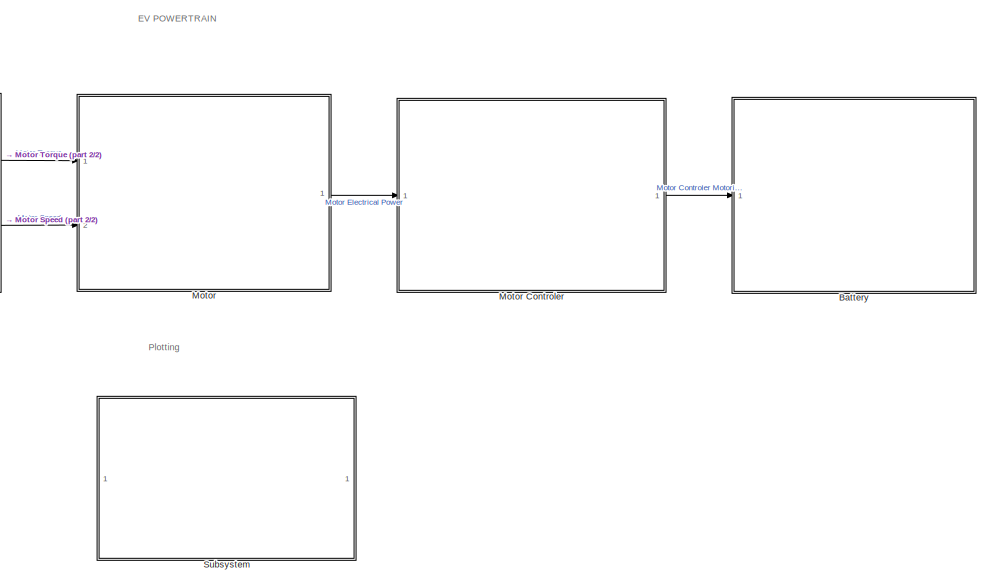
[diagram: root canvas - part 1/2, right side, full height]
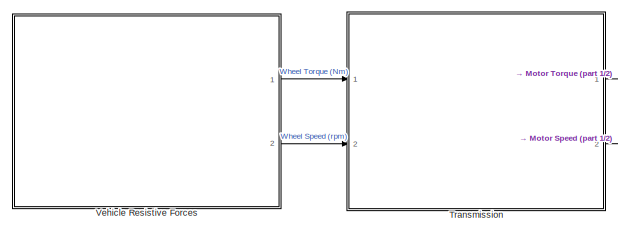
[diagram: root canvas - part 2/2, middle left region]
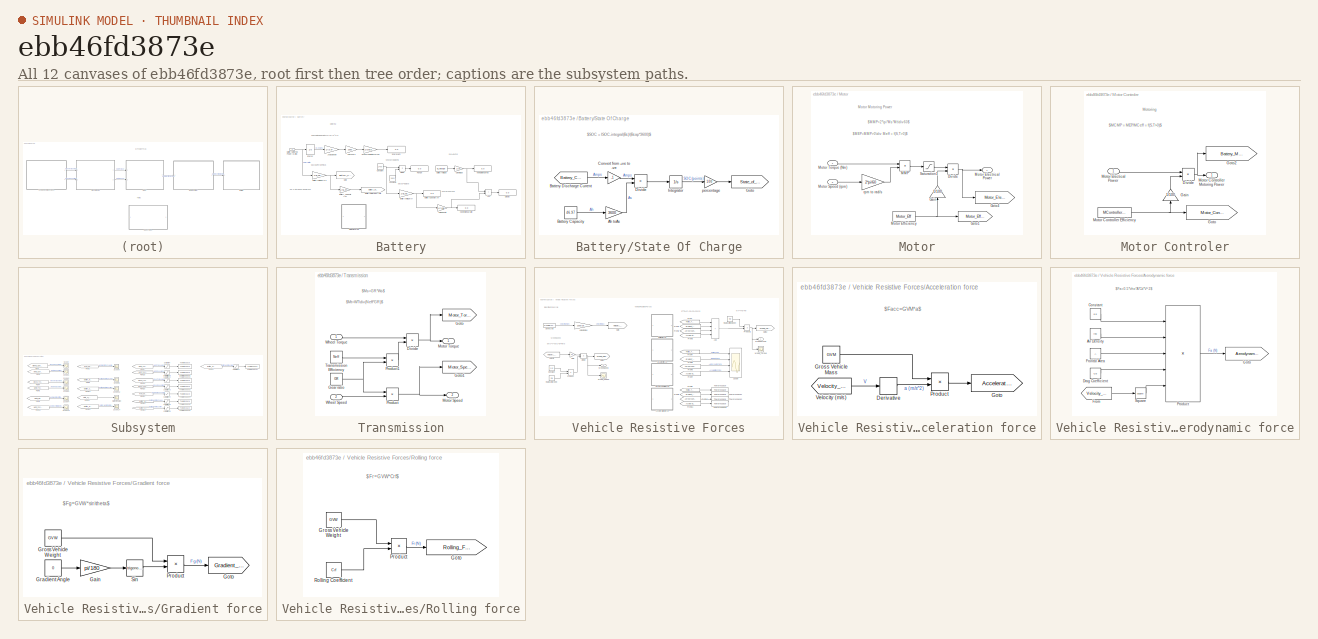
[diagram: thumbnail index - all 12 canvases of the model, root first then tree order]
MODEL slx_ebb46fd3873e
KIND model
CONFIG AbsTol = auto
CONFIG EnableMultiTasking = off
CONFIG FixedStep = 0.5
CONFIG MaxStep = auto
CONFIG MinStep = auto
CONFIG RelTol = 1e-3
CONFIG SampleTimeConstraint = Unconstrained
CONFIG Solver = FixedStepAuto
CONFIG SolverName = FixedStepAuto
CONFIG StartTime = 0.0
CONFIG StopTime = 993
BLOCK [SubSystem] Battery
  Ports = [1]
  RequestExecContextInheritance = off
BLOCK [Sum] Battery/Add
  IconShape = rectangular
  Ports = [2, 1]
BLOCK [Display] Battery/Battery Capacity (Ah)
  Decimation = 1
  Ports = [1]
BLOCK [Goto] Battery/Battery Motoring C-rate
  GotoTag = Battery_Motoring_Crate
  TagVisibility = global
BLOCK [Inport] Battery/Battery Motoring Power (Watts)
BLOCK [Constant] Battery/Battery Voltage
  Value = B_Voltage
BLOCK [Gain] Battery/Battery Voltage (V)
  Gain = 1/B_Voltage
BLOCK [Gain] Battery/Battery Voltage (V)2
  Gain = 1/B_Voltage
BLOCK [Gain] Battery/Battery_Capacity (Ah)
  Gain = 1/46.97
BLOCK [Gain] Battery/Call Capacity
  Gain = 1/Ccap
BLOCK [Gain] Battery/Cell Voltage
  Gain = 1/Cv
BLOCK [Constant] Battery/Constant
  Value = 2400
BLOCK [Constant] Battery/Constant1
  Value = 36.61
BLOCK [Display] Battery/Display
  Decimation = 1
  Ports = [1]
BLOCK [Product] Battery/Divide
  Inputs = */
  Ports = [2, 1]
BLOCK [Gain] Battery/Drive Cycle Distance (km)
  Gain = 1/Distance
BLOCK [Integrator] Battery/Energy
  Ports = [1, 1]
BLOCK [Display] Battery/Energy//Km
  Decimation = 1
  Ports = [1]
BLOCK [Goto] Battery/Goto
  GotoTag = Battery_Current
  TagVisibility = global
BLOCK [Gain] Battery/Joules to Kwh
  Gain = 1/(3.6*10^6)
BLOCK [Gain] Battery/Kwh To Wh
  Gain = 1000
BLOCK [Display] Battery/No of Cells in Series
  Decimation = 1
  Ports = [1]
BLOCK [Display] Battery/No of cells in parallel
  Decimation = 1
  Ports = [1]
BLOCK [Display] Battery/Range
  Decimation = 1
  Ports = [1]
BLOCK [SubSystem] Battery/State Of Charge
  Ports = []
  RequestExecContextInheritance = off
BLOCK [Gain] Battery/State Of Charge/Ah toAs
  Gain = 3600
BLOCK [Constant] Battery/State Of Charge/Battery Capacity
  Value = 46.97
BLOCK [From] Battery/State Of Charge/Battery Discharge Current
  GotoTag = Battery_Current
  TagVisibility = global
BLOCK [Gain] Battery/State Of Charge/Convert from +ve to -ve
  Gain = -1
BLOCK [Product] Battery/State Of Charge/Divide
  Inputs = */
  Ports = [2, 1]
BLOCK [Goto] Battery/State Of Charge/Goto
  GotoTag = State_of_Charge
  TagVisibility = global
BLOCK [Integrator] Battery/State Of Charge/Integrator
  InitialCondition = ISOC
  Ports = [1, 1]
BLOCK [Gain] Battery/State Of Charge/percentage
  Gain = 100
BLOCK [SubSystem] Motor
  Ports = [2, 1]
  RequestExecContextInheritance = off
BLOCK [SubSystem] Motor Controler
  Ports = [1, 1]
  RequestExecContextInheritance = off
BLOCK [Product] Motor Controler/Divide
  Inputs = */
  Ports = [2, 1]
BLOCK [Gain] Motor Controler/Gain
  Gain = 1/100
  NameLocation = right
BLOCK [Goto] Motor Controler/Goto
  GotoTag = Motor_Controller_Efficiency
  TagVisibility = global
BLOCK [Goto] Motor Controler/Goto2
  GotoTag = Battery_Motoring_Power
  TagVisibility = global
BLOCK [Constant] Motor Controler/Motor Controller Efficiency
  Value = MController_Eff
BLOCK [Outport] Motor Controler/Motor Controller Motoring Power
BLOCK [Inport] Motor Controler/Motor Electical Power
BLOCK [Product] Motor/Divide
  Inputs = */
  Ports = [2, 1]
BLOCK [Gain] Motor/Gain
  Gain = 1/100
  NameLocation = right
BLOCK [Goto] Motor/Goto1
  GotoTag = Motor_Efficiency
  TagVisibility = global
BLOCK [Goto] Motor/Goto4
  GotoTag = Motor_Electrical_Power
  TagVisibility = global
BLOCK [Product] Motor/MMP
  Ports = [2, 1]
BLOCK [Constant] Motor/Motor Efficiency
  Value = Motor_Eff
BLOCK [Outport] Motor/Motor Electrical Power
BLOCK [Inport] Motor/Motor Speed (rpm)
  Port = 2
BLOCK [Inport] Motor/Motor Torque (Nm)
BLOCK [Saturate] Motor/Saturation1
  LowerLimit = 0
  UpperLimit = Inf
BLOCK [Gain] Motor/rpm to rad//s
  Gain = 2*pi/60
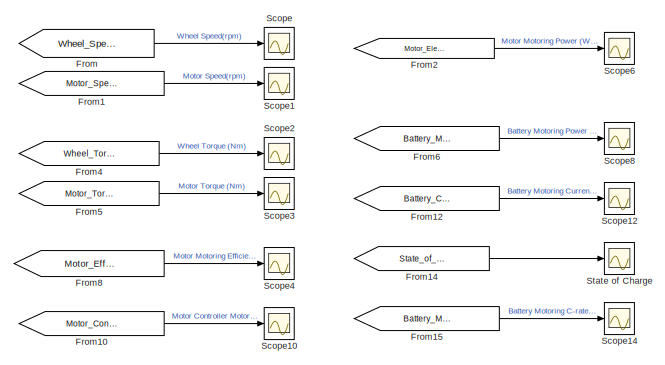
[diagram: Subsystem - part 1/2, left side, full height]
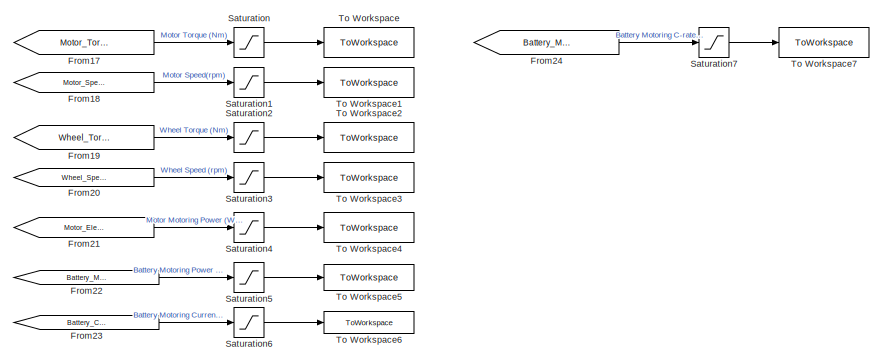
[diagram: Subsystem - part 2/2, right side, full height]
BLOCK [SubSystem] Subsystem
  Ports = []
  RequestExecContextInheritance = off
BLOCK [From] Subsystem/From
  GotoTag = Wheel_Speed
  TagVisibility = global
BLOCK [From] Subsystem/From1
  GotoTag = Motor_Speed
  TagVisibility = global
BLOCK [From] Subsystem/From10
  GotoTag = Motor_Controller_Efficiency
  TagVisibility = global
BLOCK [From] Subsystem/From12
  GotoTag = Battery_Current
  TagVisibility = global
BLOCK [From] Subsystem/From14
  GotoTag = State_of_Charge
  TagVisibility = global
BLOCK [From] Subsystem/From15
  GotoTag = Battery_Motoring_Crate
  TagVisibility = global
BLOCK [From] Subsystem/From17
  GotoTag = Motor_Torque
  TagVisibility = global
BLOCK [From] Subsystem/From18
  GotoTag = Motor_Speed
  TagVisibility = global
BLOCK [From] Subsystem/From19
  GotoTag = Wheel_Torque
  TagVisibility = global
BLOCK [From] Subsystem/From2
  GotoTag = Motor_Electrical_Power
  TagVisibility = global
BLOCK [From] Subsystem/From20
  GotoTag = Wheel_Speed
  TagVisibility = global
BLOCK [From] Subsystem/From21
  GotoTag = Motor_Electrical_Power
  TagVisibility = global
BLOCK [From] Subsystem/From22
  GotoTag = Battery_Motoring_Power
  TagVisibility = global
BLOCK [From] Subsystem/From23
  GotoTag = Battery_Current
  TagVisibility = global
BLOCK [From] Subsystem/From24
  GotoTag = Battery_Motoring_Crate
  TagVisibility = global
BLOCK [From] Subsystem/From4
  GotoTag = Wheel_Torque
  TagVisibility = global
BLOCK [From] Subsystem/From5
  GotoTag = Motor_Torque
  TagVisibility = global
BLOCK [From] Subsystem/From6
  GotoTag = Battery_Motoring_Power
  TagVisibility = global
BLOCK [From] Subsystem/From8
  GotoTag = Motor_Efficiency
  TagVisibility = global
BLOCK [Saturate] Subsystem/Saturation
  LowerLimit = 0
  UpperLimit = inf
BLOCK [Saturate] Subsystem/Saturation1
  LowerLimit = 0
  UpperLimit = inf
BLOCK [Saturate] Subsystem/Saturation2
  LowerLimit = 0
  UpperLimit = inf
BLOCK [Saturate] Subsystem/Saturation3
  LowerLimit = 0
  UpperLimit = inf
BLOCK [Saturate] Subsystem/Saturation4
  LowerLimit = 0
  UpperLimit = inf
BLOCK [Saturate] Subsystem/Saturation5
  LowerLimit = 0
  UpperLimit = inf
BLOCK [Saturate] Subsystem/Saturation6
  LowerLimit = 0
  UpperLimit = inf
BLOCK [Saturate] Subsystem/Saturation7
  LowerLimit = 0
  UpperLimit = inf
BLOCK [Scope] Subsystem/Scope
  Floating = off
  NumInputPorts = 1
  Ports = [1]
  ScopeSpecificationString = Simulink.scopes.TimeScopeBlockCfg('CurrentConfiguration', extmgr.ConfigurationSet(extmgr.Configuration('Core','General UI',true),extmgr.Configuration('Core','Source UI',true),extmgr.Configuration('Sources','WiredSimulink',true,'DataLoggingVariableName','ScopeData1'),extmgr.Configuration('Visuals','Time Domain',true,'SerializedDisplays',{struct('MinYLimReal','-125.53642','MaxYLimReal','1129.82778',...<+1447ch>
BLOCK [Scope] Subsystem/Scope1
  Floating = off
  NumInputPorts = 1
  Ports = [1]
  ScopeSpecificationString = Simulink.scopes.TimeScopeBlockCfg('CurrentConfiguration', extmgr.ConfigurationSet(extmgr.Configuration('Core','General UI',true),extmgr.Configuration('Core','Source UI',true),extmgr.Configuration('Sources','WiredSimulink',true,'DataLoggingVariableName','ScopeData2'),extmgr.Configuration('Visuals','Time Domain',true,'SerializedDisplays',{struct('MinYLimReal','-979.18408','MaxYLimReal','8812.6567','...<+1443ch>
BLOCK [Scope] Subsystem/Scope10
  Floating = off
  NumInputPorts = 1
  Ports = [1]
  ScopeSpecificationString = Simulink.scopes.TimeScopeBlockCfg('CurrentConfiguration', extmgr.ConfigurationSet(extmgr.Configuration('Core','General UI',true),extmgr.Configuration('Core','Source UI',true),extmgr.Configuration('Sources','WiredSimulink',true,'DataLoggingVariableName','ScopeData11'),extmgr.Configuration('Visuals','Time Domain',true),extmgr.Configuration('Tools','Plot Navigation',true),extmgr.Configuration('Tools'...<+41ch>
BLOCK [Scope] Subsystem/Scope12
  Floating = off
  NumInputPorts = 1
  Ports = [1]
  ScopeSpecificationString = Simulink.scopes.TimeScopeBlockCfg('CurrentConfiguration', extmgr.ConfigurationSet(extmgr.Configuration('Core','General UI',true,'FigureColor',[0 0 0]),extmgr.Configuration('Core','Source UI',true),extmgr.Configuration('Sources','WiredSimulink',true,'DataLoggingVariableName','ScopeData13'),extmgr.Configuration('Visuals','Time Domain',true,'SerializedDisplays',{struct('MinYLimReal','-10.08425','MaxY...<+1433ch>
BLOCK [Scope] Subsystem/Scope14
  Floating = off
  NumInputPorts = 1
  Ports = [1]
  ScopeSpecificationString = Simulink.scopes.TimeScopeBlockCfg('CurrentConfiguration', extmgr.ConfigurationSet(extmgr.Configuration('Core','General UI',true),extmgr.Configuration('Core','Source UI',true),extmgr.Configuration('Sources','WiredSimulink',true,'DataLoggingVariableName','ScopeData15'),extmgr.Configuration('Visuals','Time Domain',true,'SerializedDisplays',{struct('MinYLimReal','-0.15328','MaxYLimReal','1.37951','YLa...<+1441ch>
BLOCK [Scope] Subsystem/Scope2
  Floating = off
  NumInputPorts = 1
  Ports = [1]
  ScopeSpecificationString = Simulink.scopes.TimeScopeBlockCfg('CurrentConfiguration', extmgr.ConfigurationSet(extmgr.Configuration('Core','General UI',true),extmgr.Configuration('Core','Source UI',true),extmgr.Configuration('Sources','WiredSimulink',true,'DataLoggingVariableName','ScopeData3'),extmgr.Configuration('Visuals','Time Domain',true,'SerializedDisplays',{struct('MinYLimReal','-107.61615','MaxYLimReal','109.43894','...<+1444ch>
BLOCK [Scope] Subsystem/Scope3
  Floating = off
  NumInputPorts = 1
  Ports = [1]
  ScopeSpecificationString = Simulink.scopes.TimeScopeBlockCfg('CurrentConfiguration', extmgr.ConfigurationSet(extmgr.Configuration('Core','General UI',true),extmgr.Configuration('Core','Source UI',true),extmgr.Configuration('Sources','WiredSimulink',true,'DataLoggingVariableName','ScopeData4'),extmgr.Configuration('Visuals','Time Domain',true,'SerializedDisplays',{struct('MinYLimReal','-16.2317','MaxYLimReal','16.50663','YLa...<+1409ch>
BLOCK [Scope] Subsystem/Scope4
  Floating = off
  NumInputPorts = 1
  Ports = [1]
  ScopeSpecificationString = Simulink.scopes.TimeScopeBlockCfg('CurrentConfiguration', extmgr.ConfigurationSet(extmgr.Configuration('Core','General UI',true),extmgr.Configuration('Core','Source UI',true),extmgr.Configuration('Sources','WiredSimulink',true,'DataLoggingVariableName','ScopeData5'),extmgr.Configuration('Visuals','Time Domain',true),extmgr.Configuration('Tools','Plot Navigation',true),extmgr.Configuration('Tools',...<+40ch>
BLOCK [Scope] Subsystem/Scope6
  Floating = off
  NumInputPorts = 1
  Ports = [1]
  ScopeSpecificationString = Simulink.scopes.TimeScopeBlockCfg('CurrentConfiguration', extmgr.ConfigurationSet(extmgr.Configuration('Core','General UI',true),extmgr.Configuration('Core','Source UI',true),extmgr.Configuration('Sources','WiredSimulink',true,'DataLoggingVariableName','ScopeData7'),extmgr.Configuration('Visuals','Time Domain',true,'SerializedDisplays',{struct('MinYLimReal','-651.86249','MaxYLimReal','5866.76243',...<+1434ch>
BLOCK [Scope] Subsystem/Scope8
  Floating = off
  NumInputPorts = 1
  Ports = [1]
  ScopeSpecificationString = Simulink.scopes.TimeScopeBlockCfg('CurrentConfiguration', extmgr.ConfigurationSet(extmgr.Configuration('Core','General UI',true),extmgr.Configuration('Core','Source UI',true),extmgr.Configuration('Sources','WiredSimulink',true,'DataLoggingVariableName','ScopeData9'),extmgr.Configuration('Visuals','Time Domain',true,'SerializedDisplays',{struct('MinYLimReal','-3678.73387','MaxYLimReal','33108.60479...<+1469ch>
BLOCK [Scope] Subsystem/State of Charge
  Floating = off
  NumInputPorts = 1
  Ports = [1]
  ScopeSpecificationString = Simulink.scopes.TimeScopeBlockCfg('CurrentConfiguration', extmgr.ConfigurationSet(extmgr.Configuration('Core','General UI',true),extmgr.Configuration('Core','Source UI',true),extmgr.Configuration('Sources','WiredSimulink',true,'DataLoggingVariableName','ScopeData1'),extmgr.Configuration('Visuals','Time Domain',true,'SerializedDisplays',{struct('MinYLimReal','87.04336','MaxYLimReal','101.43963','YL...<+1433ch>
BLOCK [ToWorkspace] Subsystem/To Workspace
  FixptAsFi = on
  MaxDataPoints = inf
  Ports = [1]
  SampleTime = -1
  SaveFormat = Timeseries
  VariableName = Motor_Torque
BLOCK [ToWorkspace] Subsystem/To Workspace1
  FixptAsFi = on
  MaxDataPoints = inf
  Ports = [1]
  SampleTime = -1
  SaveFormat = Timeseries
  VariableName = Motor_Speed
BLOCK [ToWorkspace] Subsystem/To Workspace2
  FixptAsFi = on
  MaxDataPoints = inf
  Ports = [1]
  SampleTime = -1
  SaveFormat = Timeseries
  VariableName = Wheel_Torque
BLOCK [ToWorkspace] Subsystem/To Workspace3
  FixptAsFi = on
  MaxDataPoints = inf
  Ports = [1]
  SampleTime = -1
  SaveFormat = Timeseries
  VariableName = Wheel_Speed
BLOCK [ToWorkspace] Subsystem/To Workspace4
  FixptAsFi = on
  MaxDataPoints = inf
  Ports = [1]
  SampleTime = -1
  SaveFormat = Timeseries
  VariableName = Motor_Power
BLOCK [ToWorkspace] Subsystem/To Workspace5
  FixptAsFi = on
  MaxDataPoints = inf
  Ports = [1]
  SampleTime = -1
  SaveFormat = Timeseries
  VariableName = Battery_Power
BLOCK [ToWorkspace] Subsystem/To Workspace6
  FixptAsFi = on
  MaxDataPoints = inf
  Ports = [1]
  SampleTime = -1
  SaveFormat = Timeseries
  VariableName = Battery_Current
BLOCK [ToWorkspace] Subsystem/To Workspace7
  FixptAsFi = on
  MaxDataPoints = inf
  Ports = [1]
  SampleTime = -1
  SaveFormat = Timeseries
  VariableName = Battery_CRate
BLOCK [SubSystem] Transmission
  Ports = [2, 2]
  RequestExecContextInheritance = off
BLOCK [Product] Transmission/Divide
  Inputs = */
  Ports = [2, 1]
BLOCK [Constant] Transmission/Gear ratio
  Value = GR
BLOCK [Goto] Transmission/Goto
  GotoTag = Motor_Torque
  TagVisibility = global
BLOCK [Goto] Transmission/Goto1
  GotoTag = Motor_Speed
  TagVisibility = global
BLOCK [Outport] Transmission/Motor Speed
  Port = 2
BLOCK [Outport] Transmission/Motor Torque
BLOCK [Product] Transmission/Product
  Ports = [2, 1]
BLOCK [Product] Transmission/Product1
  Ports = [2, 1]
BLOCK [Constant] Transmission/Transmission Efficiency
  Value = Neff
BLOCK [Inport] Transmission/Wheel Speed
  Port = 2
BLOCK [Inport] Transmission/Wheel Torque
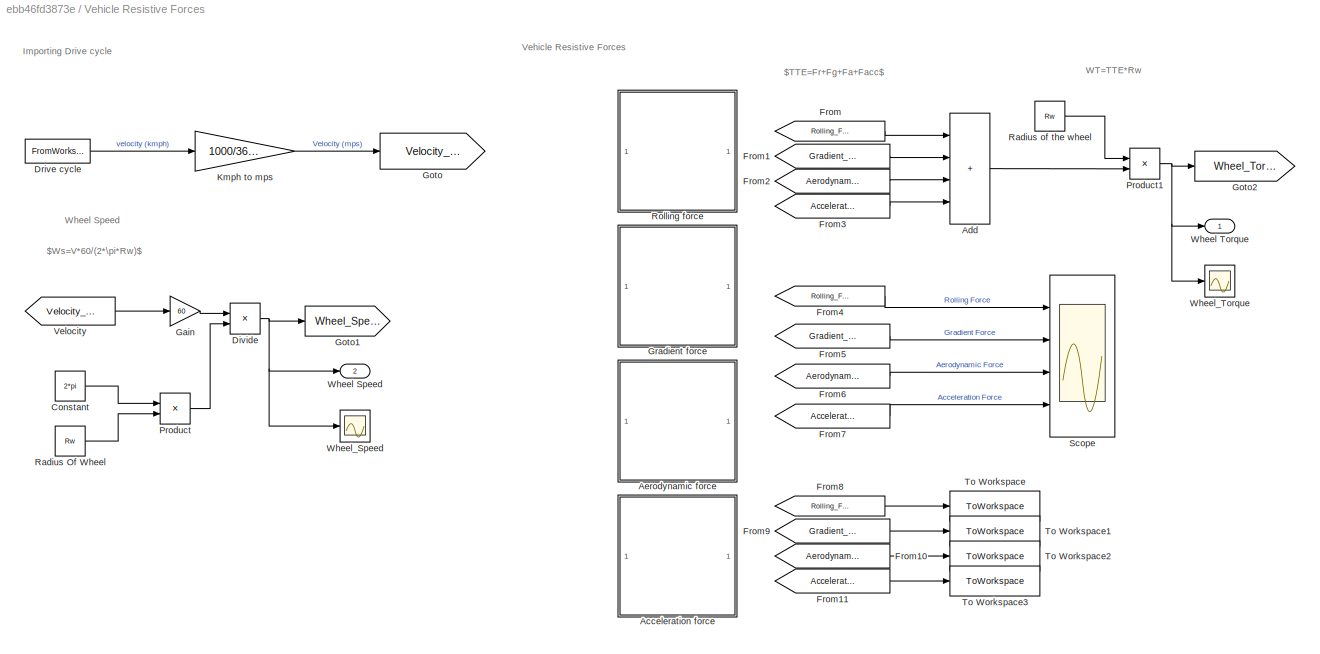
BLOCK [SubSystem] Vehicle Resistive Forces
  Ports = [0, 2]
  RequestExecContextInheritance = off
BLOCK [SubSystem] Vehicle Resistive Forces/Acceleration force
  Ports = []
  RequestExecContextInheritance = off
BLOCK [Derivative] Vehicle Resistive Forces/Acceleration force/Derivative
BLOCK [Goto] Vehicle Resistive Forces/Acceleration force/Goto
  GotoTag = Acceleration_Force
  TagVisibility = global
BLOCK [Constant] Vehicle Resistive Forces/Acceleration force/Gross Vehicle Mass
  Value = GVM
BLOCK [Product] Vehicle Resistive Forces/Acceleration force/Product
  Ports = [2, 1]
BLOCK [From] Vehicle Resistive Forces/Acceleration force/Velocity (m//s)
  GotoTag = Velocity_mps
  TagVisibility = global
BLOCK [Sum] Vehicle Resistive Forces/Add
  IconShape = rectangular
  Inputs = ++++
  Ports = [4, 1]
BLOCK [SubSystem] Vehicle Resistive Forces/Aerodynamic force
  Ports = []
  RequestExecContextInheritance = off
BLOCK [Constant] Vehicle Resistive Forces/Aerodynamic force/Air Density
  Value = rho
BLOCK [Constant] Vehicle Resistive Forces/Aerodynamic force/Constant
  Value = 0.5
BLOCK [Constant] Vehicle Resistive Forces/Aerodynamic force/Drag Coefficient
  Value = Cd
BLOCK [From] Vehicle Resistive Forces/Aerodynamic force/From
  GotoTag = Velocity_mps
  TagVisibility = global
BLOCK [Constant] Vehicle Resistive Forces/Aerodynamic force/Frontal Area
  Value = A
BLOCK [Goto] Vehicle Resistive Forces/Aerodynamic force/Goto
  GotoTag = Aerodynamic_Force
  TagVisibility = global
BLOCK [Product] Vehicle Resistive Forces/Aerodynamic force/Product
  Inputs = 5
  Ports = [5, 1]
BLOCK [Math] Vehicle Resistive Forces/Aerodynamic force/Square
  Operator = square
  Ports = [1, 1]
BLOCK [Constant] Vehicle Resistive Forces/Constant
  Value = 2*pi
BLOCK [Product] Vehicle Resistive Forces/Divide
  Inputs = */
  Ports = [2, 1]
BLOCK [FromWorkspace] Vehicle Resistive Forces/Drive cycle
  VariableName = Artimus_Urban
BLOCK [From] Vehicle Resistive Forces/From
  GotoTag = Rolling_Force
  TagVisibility = global
BLOCK [From] Vehicle Resistive Forces/From1
  GotoTag = Gradient_Force
  TagVisibility = global
BLOCK [From] Vehicle Resistive Forces/From10
  GotoTag = Aerodynamic_Force
  TagVisibility = global
BLOCK [From] Vehicle Resistive Forces/From11
  GotoTag = Acceleration_Force
  TagVisibility = global
BLOCK [From] Vehicle Resistive Forces/From2
  GotoTag = Aerodynamic_Force
  TagVisibility = global
BLOCK [From] Vehicle Resistive Forces/From3
  GotoTag = Acceleration_Force
  TagVisibility = global
BLOCK [From] Vehicle Resistive Forces/From4
  GotoTag = Rolling_Force
  TagVisibility = global
BLOCK [From] Vehicle Resistive Forces/From5
  GotoTag = Gradient_Force
  TagVisibility = global
BLOCK [From] Vehicle Resistive Forces/From6
  GotoTag = Aerodynamic_Force
  TagVisibility = global
BLOCK [From] Vehicle Resistive Forces/From7
  GotoTag = Acceleration_Force
  TagVisibility = global
BLOCK [From] Vehicle Resistive Forces/From8
  GotoTag = Rolling_Force
  TagVisibility = global
BLOCK [From] Vehicle Resistive Forces/From9
  GotoTag = Gradient_Force
  TagVisibility = global
BLOCK [Gain] Vehicle Resistive Forces/Gain
  Gain = 60
BLOCK [Goto] Vehicle Resistive Forces/Goto
  GotoTag = Velocity_mps
  TagVisibility = global
BLOCK [Goto] Vehicle Resistive Forces/Goto1
  GotoTag = Wheel_Speed
  TagVisibility = global
BLOCK [Goto] Vehicle Resistive Forces/Goto2
  GotoTag = Wheel_Torque
  TagVisibility = global
BLOCK [SubSystem] Vehicle Resistive Forces/Gradient force
  Ports = []
  RequestExecContextInheritance = off
BLOCK [Gain] Vehicle Resistive Forces/Gradient force/Gain
  Gain = pi/180
BLOCK [Goto] Vehicle Resistive Forces/Gradient force/Goto
  GotoTag = Gradient_Force
  TagVisibility = global
BLOCK [Constant] Vehicle Resistive Forces/Gradient force/Gradient Angle
  Value = 0
BLOCK [Constant] Vehicle Resistive Forces/Gradient force/Gross Vehicle Weight
  Value = GVW
BLOCK [Product] Vehicle Resistive Forces/Gradient force/Product
  Ports = [2, 1]
BLOCK [Trigonometry] Vehicle Resistive Forces/Gradient force/Sin
  Ports = [1, 1]
BLOCK [Gain] Vehicle Resistive Forces/Kmph to mps
  Gain = 1000/3600
BLOCK [Product] Vehicle Resistive Forces/Product
  Ports = [2, 1]
BLOCK [Product] Vehicle Resistive Forces/Product1
  Ports = [2, 1]
BLOCK [Constant] Vehicle Resistive Forces/Radius Of Wheel
  Value = Rw
BLOCK [Constant] Vehicle Resistive Forces/Radius of the wheel
  Value = Rw
BLOCK [SubSystem] Vehicle Resistive Forces/Rolling force
  Ports = []
  RequestExecContextInheritance = off
BLOCK [Goto] Vehicle Resistive Forces/Rolling force/Goto
  GotoTag = Rolling_Force
  TagVisibility = global
BLOCK [Constant] Vehicle Resistive Forces/Rolling force/Gross Vehicle Weight
  Value = GVW
BLOCK [Product] Vehicle Resistive Forces/Rolling force/Product
  Ports = [2, 1]
BLOCK [Constant] Vehicle Resistive Forces/Rolling force/Rolling Coefficient
  Value = Crf
BLOCK [Scope] Vehicle Resistive Forces/Scope
  Floating = off
  NumInputPorts = 4
  Ports = [4]
  ScopeSpecificationString = Simulink.scopes.TimeScopeBlockCfg('CurrentConfiguration', extmgr.ConfigurationSet(extmgr.Configuration('Core','General UI',true),extmgr.Configuration('Core','Source UI',true),extmgr.Configuration('Sources','WiredSimulink',true,'DataLoggingVariableName','ScopeData1'),extmgr.Configuration('Visuals','Time Domain',true,'SerializedDisplays',{struct('MinYLimReal','18.10565','MaxYLimReal','38.10565','YLa...<+3539ch>
BLOCK [ToWorkspace] Vehicle Resistive Forces/To Workspace
  FixptAsFi = on
  MaxDataPoints = inf
  Ports = [1]
  SampleTime = -1
  SaveFormat = Timeseries
  VariableName = Rolling_Force
BLOCK [ToWorkspace] Vehicle Resistive Forces/To Workspace1
  FixptAsFi = on
  MaxDataPoints = inf
  Ports = [1]
  SampleTime = -1
  SaveFormat = Timeseries
  VariableName = Gradient_Force
BLOCK [ToWorkspace] Vehicle Resistive Forces/To Workspace2
  FixptAsFi = on
  MaxDataPoints = inf
  Ports = [1]
  SampleTime = -1
  SaveFormat = Timeseries
  VariableName = Aerodynamic_Force
BLOCK [ToWorkspace] Vehicle Resistive Forces/To Workspace3
  FixptAsFi = on
  MaxDataPoints = inf
  Ports = [1]
  SampleTime = -1
  SaveFormat = Timeseries
  VariableName = Acceleration_Force
BLOCK [From] Vehicle Resistive Forces/Velocity
  GotoTag = Velocity_mps
  TagVisibility = global
BLOCK [Outport] Vehicle Resistive Forces/Wheel Speed
  Port = 2
BLOCK [Outport] Vehicle Resistive Forces/Wheel Torque
BLOCK [Scope] Vehicle Resistive Forces/Wheel_Speed
  Floating = off
  NumInputPorts = 1
  Ports = [1]
  ScopeSpecificationString = Simulink.scopes.TimeScopeBlockCfg('CurrentConfiguration', extmgr.ConfigurationSet(extmgr.Configuration('Core','General UI',true),extmgr.Configuration('Core','Source UI',true),extmgr.Configuration('Sources','WiredSimulink',true,'DataLoggingVariableName','ScopeData1'),extmgr.Configuration('Visuals','Time Domain',true),extmgr.Configuration('Tools','Plot Navigation',true),extmgr.Configuration('Tools',...<+40ch>
BLOCK [Scope] Vehicle Resistive Forces/Wheel_Torque
  Floating = off
  NumInputPorts = 1
  Ports = [1]
  ScopeSpecificationString = Simulink.scopes.TimeScopeBlockCfg('CurrentConfiguration', extmgr.ConfigurationSet(extmgr.Configuration('Core','General UI',true),extmgr.Configuration('Core','Source UI',true),extmgr.Configuration('Sources','WiredSimulink',true),extmgr.Configuration('Visuals','Time Domain',true,'SerializedDisplays',{struct('MinYLimReal','-107.61615','MaxYLimReal','109.43894','YLabelReal','','MinYLimMag',' 0.00000',...<+1342ch>
ANNOTATION (root): EV POWERTRAIN
ANNOTATION (root): Plotting
ANNOTATION Battery: Motoring
ANNOTATION Battery: $B-Crate = BMC or BRC/ Bcap$
ANNOTATION Battery: $BC = BMP or BRP/BV$
ANNOTATION Battery: $Bcap = BE/BV$
ANNOTATION Battery: $Range = BE/E/Km$
ANNOTATION Battery: $E/Km = \int BMP\div Distance*3.6*10^6)$
ANNOTATION Battery: $Np = Bcap/Ccap$
ANNOTATION Battery: $Ns = Bv/Cv$
ANNOTATION Battery/State Of Charge: $SOC = ISOC-integral(Bc)/(Bcap*3600)$
ANNOTATION Motor: Motor Motoring Power
ANNOTATION Motor: $MEP=MMP>0\div Meff = f(S,T>0)$
ANNOTATION Motor: $MMP=2*\pi*Ms*Mt\div60$
ANNOTATION Motor Controler: Motoring
ANNOTATION Motor Controler: $MCMP = MEP/MCeff = f(S,T>0)$
ANNOTATION Transmission: $Ms=GR*Ws$
ANNOTATION Transmission: $Mt=WT\div(Neff*GR)$
ANNOTATION Vehicle Resistive Forces: WT=TTE*Rw
ANNOTATION Vehicle Resistive Forces: Importing Drive cycle
ANNOTATION Vehicle Resistive Forces: Vehicle Resistive Forces
ANNOTATION Vehicle Resistive Forces: Wheel Speed
ANNOTATION Vehicle Resistive Forces: $Ws=V*60/(2*\pi*Rw)$
ANNOTATION Vehicle Resistive Forces: $TTE=Fr+Fg+Fa+Facc$
ANNOTATION Vehicle Resistive Forces/Acceleration force: $Facc=GVM*a$
ANNOTATION Vehicle Resistive Forces/Aerodynamic force: $Fa=0.5*\rho*A*Cd*V^2$
ANNOTATION Vehicle Resistive Forces/Gradient force: $Fg=GVW*sin\theta$
ANNOTATION Vehicle Resistive Forces/Rolling force: $Fr=GVW*Crf$
LINE Battery/Add:1 -> Battery/Display:1
NET Battery/Battery Motoring Power (Watts):1 -> Battery/Battery Voltage (V)2:1, Battery/Energy:1
NET Battery/Battery Voltage (V)2:1 -> Battery/Battery_Capacity (Ah):1, Battery/Goto:1
NET Battery/Battery Voltage (V):1 -> Battery/Battery Capacity (Ah):1, Battery/Call Capacity:1
LINE Battery/Battery Voltage:1 -> Battery/Cell Voltage:1
LINE Battery/Battery_Capacity (Ah):1 -> Battery/Battery Motoring C-rate:1
NET Battery/Call Capacity:1 -> Battery/Add:2, Battery/No of cells in parallel:1
NET Battery/Cell Voltage:1 -> Battery/Add:1, Battery/No of Cells in Series:1
LINE Battery/Constant1:1 -> Battery/Divide:2
NET Battery/Constant:1 -> Battery/Battery Voltage (V):1, Battery/Divide:1
LINE Battery/Divide:1 -> Battery/Range:1
LINE Battery/Drive Cycle Distance (km):1 -> Battery/Energy//Km:1
LINE Battery/Energy:1 -> Battery/Joules to Kwh:1
LINE Battery/Joules to Kwh:1 -> Battery/Kwh To Wh:1
LINE Battery/Kwh To Wh:1 -> Battery/Drive Cycle Distance (km):1
LINE Battery/State Of Charge/Ah toAs:1 -> Battery/State Of Charge/Divide:2
LINE Battery/State Of Charge/Battery Capacity:1 -> Battery/State Of Charge/Ah toAs:1
LINE Battery/State Of Charge/Battery Discharge Current:1 -> Battery/State Of Charge/Convert from +ve to -ve:1
LINE Battery/State Of Charge/Convert from +ve to -ve:1 -> Battery/State Of Charge/Divide:1
LINE Battery/State Of Charge/Divide:1 -> Battery/State Of Charge/Integrator:1
LINE Battery/State Of Charge/Integrator:1 -> Battery/State Of Charge/percentage:1
LINE Battery/State Of Charge/percentage:1 -> Battery/State Of Charge/Goto:1
NET Motor Controler/Divide:1 -> Motor Controler/Goto2:1, Motor Controler/Motor Controller Motoring Power:1
LINE Motor Controler/Gain:1 -> Motor Controler/Divide:2
NET Motor Controler/Motor Controller Efficiency:1 -> Motor Controler/Gain:1, Motor Controler/Goto:1
LINE Motor Controler/Motor Electical Power:1 -> Motor Controler/Divide:1
LINE Motor Controler:1 -> Battery:1
NET Motor/Divide:1 -> Motor/Goto4:1, Motor/Motor Electrical Power:1
LINE Motor/Gain:1 -> Motor/Divide:2
LINE Motor/MMP:1 -> Motor/Saturation1:1
NET Motor/Motor Efficiency:1 -> Motor/Gain:1, Motor/Goto1:1
LINE Motor/Motor Speed (rpm):1 -> Motor/rpm to rad//s:1
LINE Motor/Motor Torque (Nm):1 -> Motor/MMP:1
LINE Motor/Saturation1:1 -> Motor/Divide:1
LINE Motor/rpm to rad//s:1 -> Motor/MMP:2
LINE Motor:1 -> Motor Controler:1
LINE Subsystem/From10:1 -> Subsystem/Scope10:1
LINE Subsystem/From12:1 -> Subsystem/Scope12:1
LINE Subsystem/From14:1 -> Subsystem/State of Charge:1
LINE Subsystem/From15:1 -> Subsystem/Scope14:1
LINE Subsystem/From17:1 -> Subsystem/Saturation:1
LINE Subsystem/From18:1 -> Subsystem/Saturation1:1
LINE Subsystem/From19:1 -> Subsystem/Saturation2:1
LINE Subsystem/From1:1 -> Subsystem/Scope1:1
LINE Subsystem/From20:1 -> Subsystem/Saturation3:1
LINE Subsystem/From21:1 -> Subsystem/Saturation4:1
LINE Subsystem/From22:1 -> Subsystem/Saturation5:1
LINE Subsystem/From23:1 -> Subsystem/Saturation6:1
LINE Subsystem/From24:1 -> Subsystem/Saturation7:1
LINE Subsystem/From2:1 -> Subsystem/Scope6:1
LINE Subsystem/From4:1 -> Subsystem/Scope2:1
LINE Subsystem/From5:1 -> Subsystem/Scope3:1
LINE Subsystem/From6:1 -> Subsystem/Scope8:1
LINE Subsystem/From8:1 -> Subsystem/Scope4:1
LINE Subsystem/From:1 -> Subsystem/Scope:1
LINE Subsystem/Saturation1:1 -> Subsystem/To Workspace1:1
LINE Subsystem/Saturation2:1 -> Subsystem/To Workspace2:1
LINE Subsystem/Saturation3:1 -> Subsystem/To Workspace3:1
LINE Subsystem/Saturation4:1 -> Subsystem/To Workspace4:1
LINE Subsystem/Saturation5:1 -> Subsystem/To Workspace5:1
LINE Subsystem/Saturation6:1 -> Subsystem/To Workspace6:1
LINE Subsystem/Saturation7:1 -> Subsystem/To Workspace7:1
LINE Subsystem/Saturation:1 -> Subsystem/To Workspace:1
NET Transmission/Divide:1 -> Transmission/Goto:1, Transmission/Motor Torque:1
NET Transmission/Gear ratio:1 -> Transmission/Product1:2, Transmission/Product:1
LINE Transmission/Product1:1 -> Transmission/Divide:2
NET Transmission/Product:1 -> Transmission/Goto1:1, Transmission/Motor Speed:1
LINE Transmission/Transmission Efficiency:1 -> Transmission/Product1:1
LINE Transmission/Wheel Speed:1 -> Transmission/Product:2
LINE Transmission/Wheel Torque:1 -> Transmission/Divide:1
LINE Transmission:1 -> Motor:1
LINE Transmission:2 -> Motor:2
LINE Vehicle Resistive Forces/Acceleration force/Derivative:1 -> Vehicle Resistive Forces/Acceleration force/Product:2
LINE Vehicle Resistive Forces/Acceleration force/Gross Vehicle Mass:1 -> Vehicle Resistive Forces/Acceleration force/Product:1
LINE Vehicle Resistive Forces/Acceleration force/Product:1 -> Vehicle Resistive Forces/Acceleration force/Goto:1
LINE Vehicle Resistive Forces/Acceleration force/Velocity (m//s):1 -> Vehicle Resistive Forces/Acceleration force/Derivative:1
LINE Vehicle Resistive Forces/Add:1 -> Vehicle Resistive Forces/Product1:2
LINE Vehicle Resistive Forces/Aerodynamic force/Air Density:1 -> Vehicle Resistive Forces/Aerodynamic force/Product:2
LINE Vehicle Resistive Forces/Aerodynamic force/Constant:1 -> Vehicle Resistive Forces/Aerodynamic force/Product:1
LINE Vehicle Resistive Forces/Aerodynamic force/Drag Coefficient:1 -> Vehicle Resistive Forces/Aerodynamic force/Product:4
LINE Vehicle Resistive Forces/Aerodynamic force/From:1 -> Vehicle Resistive Forces/Aerodynamic force/Square:1
LINE Vehicle Resistive Forces/Aerodynamic force/Frontal Area:1 -> Vehicle Resistive Forces/Aerodynamic force/Product:3
LINE Vehicle Resistive Forces/Aerodynamic force/Product:1 -> Vehicle Resistive Forces/Aerodynamic force/Goto:1
LINE Vehicle Resistive Forces/Aerodynamic force/Square:1 -> Vehicle Resistive Forces/Aerodynamic force/Product:5
LINE Vehicle Resistive Forces/Constant:1 -> Vehicle Resistive Forces/Product:1
NET Vehicle Resistive Forces/Divide:1 -> Vehicle Resistive Forces/Goto1:1, Vehicle Resistive Forces/Wheel Speed:1, Vehicle Resistive Forces/Wheel_Speed:1
LINE Vehicle Resistive Forces/Drive cycle:1 -> Vehicle Resistive Forces/Kmph to mps:1
LINE Vehicle Resistive Forces/From10:1 -> Vehicle Resistive Forces/To Workspace2:1
LINE Vehicle Resistive Forces/From11:1 -> Vehicle Resistive Forces/To Workspace3:1
LINE Vehicle Resistive Forces/From1:1 -> Vehicle Resistive Forces/Add:2
LINE Vehicle Resistive Forces/From2:1 -> Vehicle Resistive Forces/Add:3
LINE Vehicle Resistive Forces/From3:1 -> Vehicle Resistive Forces/Add:4
LINE Vehicle Resistive Forces/From4:1 -> Vehicle Resistive Forces/Scope:1
LINE Vehicle Resistive Forces/From5:1 -> Vehicle Resistive Forces/Scope:2
LINE Vehicle Resistive Forces/From6:1 -> Vehicle Resistive Forces/Scope:3
LINE Vehicle Resistive Forces/From7:1 -> Vehicle Resistive Forces/Scope:4
LINE Vehicle Resistive Forces/From8:1 -> Vehicle Resistive Forces/To Workspace:1
LINE Vehicle Resistive Forces/From9:1 -> Vehicle Resistive Forces/To Workspace1:1
LINE Vehicle Resistive Forces/From:1 -> Vehicle Resistive Forces/Add:1
LINE Vehicle Resistive Forces/Gain:1 -> Vehicle Resistive Forces/Divide:1
LINE Vehicle Resistive Forces/Gradient force/Gain:1 -> Vehicle Resistive Forces/Gradient force/Sin:1
LINE Vehicle Resistive Forces/Gradient force/Gradient Angle:1 -> Vehicle Resistive Forces/Gradient force/Gain:1
LINE Vehicle Resistive Forces/Gradient force/Gross Vehicle Weight:1 -> Vehicle Resistive Forces/Gradient force/Product:1
LINE Vehicle Resistive Forces/Gradient force/Product:1 -> Vehicle Resistive Forces/Gradient force/Goto:1
LINE Vehicle Resistive Forces/Gradient force/Sin:1 -> Vehicle Resistive Forces/Gradient force/Product:2
LINE Vehicle Resistive Forces/Kmph to mps:1 -> Vehicle Resistive Forces/Goto:1
NET Vehicle Resistive Forces/Product1:1 -> Vehicle Resistive Forces/Goto2:1, Vehicle Resistive Forces/Wheel Torque:1, Vehicle Resistive Forces/Wheel_Torque:1
LINE Vehicle Resistive Forces/Product:1 -> Vehicle Resistive Forces/Divide:2
LINE Vehicle Resistive Forces/Radius Of Wheel:1 -> Vehicle Resistive Forces/Product:2
LINE Vehicle Resistive Forces/Radius of the wheel:1 -> Vehicle Resistive Forces/Product1:1
LINE Vehicle Resistive Forces/Rolling force/Gross Vehicle Weight:1 -> Vehicle Resistive Forces/Rolling force/Product:1
LINE Vehicle Resistive Forces/Rolling force/Product:1 -> Vehicle Resistive Forces/Rolling force/Goto:1
LINE Vehicle Resistive Forces/Rolling force/Rolling Coefficient:1 -> Vehicle Resistive Forces/Rolling force/Product:2
LINE Vehicle Resistive Forces/Velocity:1 -> Vehicle Resistive Forces/Gain:1
LINE Vehicle Resistive Forces:1 -> Transmission:1
LINE Vehicle Resistive Forces:2 -> Transmission:2
note: NET lines group one-source signal fan-out (src -> all destinations, sorted); 1:1 wires keep LINE
